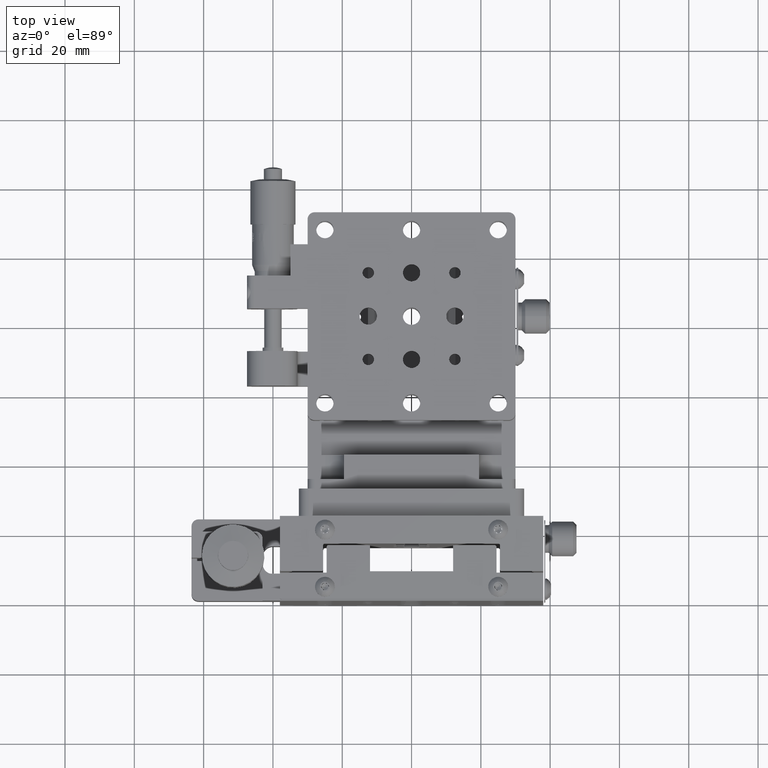
[diagram: clean part render]
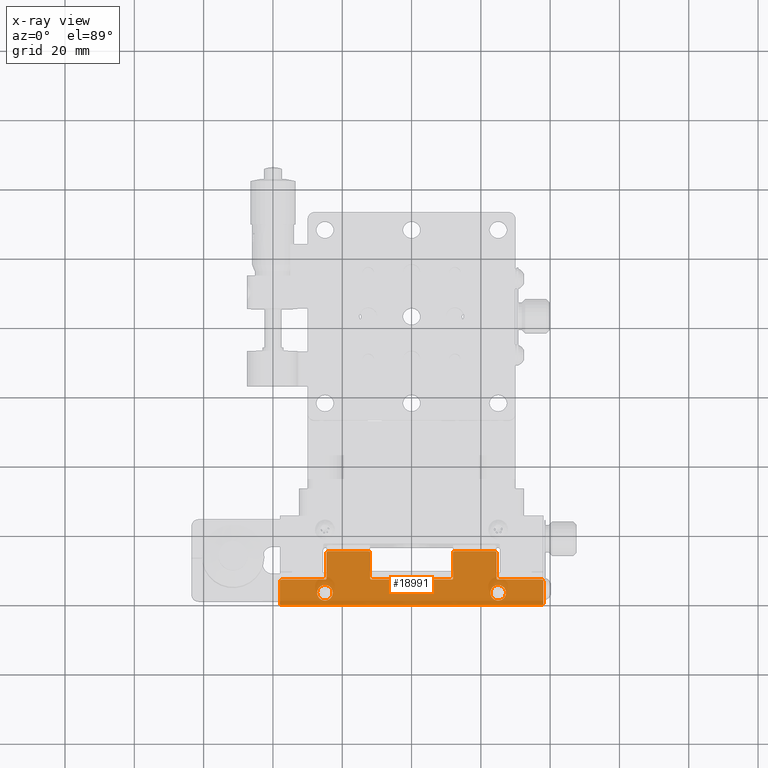
[diagram: x-ray — body ghosted, one internal face saturated and labeled with its STEP entity id]
A machine part, top view, then the same camera in x-ray: the body is ghosted and one INTERNAL B-rep face — a face not visible from any outside direction — is saturated and labeled: STEP entity #18991.
In plain terms, the highlighted planar face has unit normal (0, 0, 1).
Its self-contained STEP definition (entity closure, byte-faithful):
#149 = CARTESIAN_POINT ( 'NONE',  ( 22.74999999999999300, 3.600000000000014300, -38.00000000000000000 ) ) ;
#506 = EDGE_LOOP ( 'NONE', ( #60732, #57470 ) ) ;
#516 = DIRECTION ( 'NONE',  ( 1.000000000000000000, 0.0000000000000000000, 0.0000000000000000000 ) ) ;
#1121 = AXIS2_PLACEMENT_3D ( 'NONE', #23950, #59273, #29043 ) ;
#1295 = CIRCLE ( 'NONE', #40115, 0.5000000000000004400 ) ;
#1443 = LINE ( 'NONE', #46578, #6229 ) ;
#1451 = VECTOR ( 'NONE', #5597, 1000.000000000000000 ) ;
#1595 = ORIENTED_EDGE ( 'NONE', *, *, #2950, .T. ) ;
#1667 = CARTESIAN_POINT ( 'NONE',  ( 24.49999999999999300, 15.60000000000000900, -38.00000000000000000 ) ) ;
#1744 = EDGE_CURVE ( 'NONE', #2550, #8626, #64989, .T. ) ;
#1920 = ORIENTED_EDGE ( 'NONE', *, *, #10735, .T. ) ;
#2550 = VERTEX_POINT ( 'NONE', #3742 ) ;
#2666 = CARTESIAN_POINT ( 'NONE',  ( -38.00000000000001400, 0.5000000000000143200, -38.00000000000000000 ) ) ;
#2950 = EDGE_CURVE ( 'NONE', #30799, #49186, #20422, .T. ) ;
#3049 = CARTESIAN_POINT ( 'NONE',  ( 11.49999999999999300, 7.400000000000014600, -38.00000000000000000 ) ) ;
#3742 = CARTESIAN_POINT ( 'NONE',  ( 37.50000000000000000, 1.384109958103877700E-014, -38.00000000000000000 ) ) ;
#3840 = CIRCLE ( 'NONE', #52581, 2.250000000000001800 ) ;
#4179 = CARTESIAN_POINT ( 'NONE',  ( -11.50000000000000700, 7.400000000000014600, -38.00000000000000000 ) ) ;
#4452 = AXIS2_PLACEMENT_3D ( 'NONE', #34833, #4500, #39907 ) ;
#4500 = DIRECTION ( 'NONE',  ( 0.0000000000000000000, 0.0000000000000000000, 1.000000000000000000 ) ) ;
#4635 = AXIS2_PLACEMENT_3D ( 'NONE', #47139, #16849, #52201 ) ;
#4785 = ORIENTED_EDGE ( 'NONE', *, *, #60062, .T. ) ;
#5341 = CARTESIAN_POINT ( 'NONE',  ( -12.00000000000000900, 15.60000000000000900, -38.00000000000000000 ) ) ;
#5597 = DIRECTION ( 'NONE',  ( 0.0000000000000000000, -1.000000000000000000, 0.0000000000000000000 ) ) ;
#5859 = VECTOR ( 'NONE', #42364, 1000.000000000000000 ) ;
#6229 = VECTOR ( 'NONE', #16283, 1000.000000000000000 ) ;
#6346 = CARTESIAN_POINT ( 'NONE',  ( -37.50000000000001400, 1.384109958103877700E-014, -38.00000000000000000 ) ) ;
#6425 = CARTESIAN_POINT ( 'NONE',  ( 24.49999999999999300, 15.10000000000000700, -38.00000000000000000 ) ) ;
#6884 = EDGE_CURVE ( 'NONE', #12789, #26287, #28620, .T. ) ;
#7518 = VERTEX_POINT ( 'NONE', #41358 ) ;
#7680 = LINE ( 'NONE', #5341, #59908 ) ;
#7802 = FACE_OUTER_BOUND ( 'NONE', #46154, .T. ) ;
#7821 = LINE ( 'NONE', #63490, #19687 ) ;
#7912 = VERTEX_POINT ( 'NONE', #34703 ) ;
#8116 = LINE ( 'NONE', #41473, #45294 ) ;
#8189 = DIRECTION ( 'NONE',  ( -0.0000000000000000000, -0.0000000000000000000, -1.000000000000000000 ) ) ;
#8626 = VERTEX_POINT ( 'NONE', #55349 ) ;
#8885 = DIRECTION ( 'NONE',  ( 0.0000000000000000000, 0.0000000000000000000, 1.000000000000000000 ) ) ;
#9138 = AXIS2_PLACEMENT_3D ( 'NONE', #24068, #59392, #29159 ) ;
#9391 = FACE_BOUND ( 'NONE', #17224, .T. ) ;
#9429 = VERTEX_POINT ( 'NONE', #22765 ) ;
#9635 = ORIENTED_EDGE ( 'NONE', *, *, #35093, .T. ) ;
#9657 = CARTESIAN_POINT ( 'NONE',  ( -12.50000000000000900, 15.10000000000000700, -38.00000000000000000 ) ) ;
#10262 = DIRECTION ( 'NONE',  ( 0.0000000000000000000, 0.0000000000000000000, 1.000000000000000000 ) ) ;
#10537 = CARTESIAN_POINT ( 'NONE',  ( -37.50000000000001400, 7.400000000000014600, -38.00000000000000000 ) ) ;
#10735 = EDGE_CURVE ( 'NONE', #49186, #36899, #32332, .T. ) ;
#10839 = CARTESIAN_POINT ( 'NONE',  ( -25.00000000000000700, 3.600000000000013900, -38.00000000000000000 ) ) ;
#11503 = ORIENTED_EDGE ( 'NONE', *, *, #27313, .T. ) ;
#12314 = CARTESIAN_POINT ( 'NONE',  ( 27.24999999999999600, 3.600000000000013900, -38.00000000000000000 ) ) ;
#12789 = VERTEX_POINT ( 'NONE', #2666 ) ;
#13552 = EDGE_CURVE ( 'NONE', #26287, #2550, #1443, .T. ) ;
#13814 = ORIENTED_EDGE ( 'NONE', *, *, #24927, .T. ) ;
#13860 = LINE ( 'NONE', #46907, #51053 ) ;
#14549 = ORIENTED_EDGE ( 'NONE', *, *, #44493, .T. ) ;
#14705 = DIRECTION ( 'NONE',  ( 1.000000000000000000, 0.0000000000000000000, 0.0000000000000000000 ) ) ;
#15002 = CARTESIAN_POINT ( 'NONE',  ( -11.50000000000000700, 7.900000000000014600, -38.00000000000000000 ) ) ;
#15159 = CARTESIAN_POINT ( 'NONE',  ( -25.00000000000000700, 3.600000000000013900, -38.00000000000000000 ) ) ;
#15392 = CARTESIAN_POINT ( 'NONE',  ( 23.99999999999999300, 15.10000000000000700, -38.00000000000000000 ) ) ;
#15920 = DIRECTION ( 'NONE',  ( 1.000000000000000000, 0.0000000000000000000, 0.0000000000000000000 ) ) ;
#16283 = DIRECTION ( 'NONE',  ( 1.000000000000000000, 0.0000000000000000000, 0.0000000000000000000 ) ) ;
#16849 = DIRECTION ( 'NONE',  ( -0.0000000000000000000, -0.0000000000000000000, -1.000000000000000000 ) ) ;
#17122 = CARTESIAN_POINT ( 'NONE',  ( -12.00000000000000700, 7.900000000000014600, -38.00000000000000000 ) ) ;
#17224 = EDGE_LOOP ( 'NONE', ( #37675, #22260 ) ) ;
#17860 = VERTEX_POINT ( 'NONE', #37199 ) ;
#18265 = VECTOR ( 'NONE', #56843, 1000.000000000000000 ) ;
#18991 = ADVANCED_FACE ( 'NONE', ( #9391, #7802, #21249 ), #59796, .T. ) ;
#19687 = VECTOR ( 'NONE', #33240, 1000.000000000000000 ) ;
#19935 = EDGE_CURVE ( 'NONE', #32864, #7912, #1295, .T. ) ;
#20097 = DIRECTION ( 'NONE',  ( 1.000000000000000000, 0.0000000000000000000, 0.0000000000000000000 ) ) ;
#20241 = DIRECTION ( 'NONE',  ( 1.000000000000000000, 0.0000000000000000000, 0.0000000000000000000 ) ) ;
#20422 = CIRCLE ( 'NONE', #49907, 0.5000000000000004400 ) ;
#20503 = DIRECTION ( 'NONE',  ( 1.000000000000000000, 0.0000000000000000000, 0.0000000000000000000 ) ) ;
#20521 = EDGE_CURVE ( 'NONE', #52854, #21552, #61299, .T. ) ;
#21232 = CARTESIAN_POINT ( 'NONE',  ( -25.00000000000000400, 7.400000000000014600, -38.00000000000000000 ) ) ;
#21249 = FACE_BOUND ( 'NONE', #506, .T. ) ;
#21552 = VERTEX_POINT ( 'NONE', #59120 ) ;
#22120 = EDGE_CURVE ( 'NONE', #64115, #17860, #46839, .T. ) ;
#22231 = AXIS2_PLACEMENT_3D ( 'NONE', #61127, #30872, #516 ) ;
#22260 = ORIENTED_EDGE ( 'NONE', *, *, #38354, .F. ) ;
#22765 = CARTESIAN_POINT ( 'NONE',  ( -24.50000000000000700, 15.10000000000000700, -38.00000000000000000 ) ) ;
#23362 = CARTESIAN_POINT ( 'NONE',  ( -37.50000000000001400, 6.900000000000013700, -38.00000000000000000 ) ) ;
#23529 = EDGE_CURVE ( 'NONE', #7912, #12789, #55261, .T. ) ;
#23574 = AXIS2_PLACEMENT_3D ( 'NONE', #25573, #60902, #30644 ) ;
#23738 = CARTESIAN_POINT ( 'NONE',  ( -27.25000000000001100, 3.600000000000014300, -38.00000000000000000 ) ) ;
#23950 = CARTESIAN_POINT ( 'NONE',  ( 12.49999999999999500, 15.10000000000000700, -38.00000000000000000 ) ) ;
#23981 = VERTEX_POINT ( 'NONE', #61460 ) ;
#24068 = CARTESIAN_POINT ( 'NONE',  ( 37.50000000000000000, 0.5000000000000138800, -38.00000000000000000 ) ) ;
#24508 = CARTESIAN_POINT ( 'NONE',  ( 37.50000000000000000, 6.900000000000013700, -38.00000000000000000 ) ) ;
#24528 = DIRECTION ( 'NONE',  ( 0.0000000000000000000, 0.0000000000000000000, 1.000000000000000000 ) ) ;
#24901 = VERTEX_POINT ( 'NONE', #61848 ) ;
#24927 = EDGE_CURVE ( 'NONE', #42626, #52854, #46235, .T. ) ;
#25018 = EDGE_CURVE ( 'NONE', #8626, #51753, #33562, .T. ) ;
#25118 = CARTESIAN_POINT ( 'NONE',  ( -12.00000000000000700, 7.400000000000014600, -38.00000000000000000 ) ) ;
#25145 = ORIENTED_EDGE ( 'NONE', *, *, #28998, .T. ) ;
#25323 = EDGE_CURVE ( 'NONE', #23981, #59138, #37460, .T. ) ;
#25449 = DIRECTION ( 'NONE',  ( -1.000000000000000000, -0.0000000000000000000, -0.0000000000000000000 ) ) ;
#25573 = CARTESIAN_POINT ( 'NONE',  ( -25.00000000000000400, 7.900000000000014600, -38.00000000000000000 ) ) ;
#26031 = AXIS2_PLACEMENT_3D ( 'NONE', #24508, #59834, #29586 ) ;
#26287 = VERTEX_POINT ( 'NONE', #6346 ) ;
#26636 = EDGE_CURVE ( 'NONE', #27033, #63084, #3840, .T. ) ;
#26715 = AXIS2_PLACEMENT_3D ( 'NONE', #40550, #10262, #45628 ) ;
#26914 = AXIS2_PLACEMENT_3D ( 'NONE', #54730, #24528, #59854 ) ;
#27033 = VERTEX_POINT ( 'NONE', #54191 ) ;
#27313 = EDGE_CURVE ( 'NONE', #24901, #41751, #7680, .T. ) ;
#28456 = DIRECTION ( 'NONE',  ( 1.000000000000000000, 0.0000000000000000000, 0.0000000000000000000 ) ) ;
#28620 = CIRCLE ( 'NONE', #22231, 0.5000000000000004400 ) ;
#28711 = ORIENTED_EDGE ( 'NONE', *, *, #6884, .T. ) ;
#28998 = EDGE_CURVE ( 'NONE', #9429, #23981, #7821, .T. ) ;
#29043 = DIRECTION ( 'NONE',  ( 1.000000000000000000, 0.0000000000000000000, 0.0000000000000000000 ) ) ;
#29159 = DIRECTION ( 'NONE',  ( 1.000000000000000000, 0.0000000000000000000, 0.0000000000000000000 ) ) ;
#29586 = DIRECTION ( 'NONE',  ( 1.000000000000000000, 0.0000000000000000000, 0.0000000000000000000 ) ) ;
#30187 = DIRECTION ( 'NONE',  ( -2.115516434118058900E-016, 1.000000000000000000, 0.0000000000000000000 ) ) ;
#30644 = DIRECTION ( 'NONE',  ( 1.000000000000000000, 0.0000000000000000000, 0.0000000000000000000 ) ) ;
#30745 = VECTOR ( 'NONE', #30187, 1000.000000000000000 ) ;
#30799 = VERTEX_POINT ( 'NONE', #4179 ) ;
#30872 = DIRECTION ( 'NONE',  ( 0.0000000000000000000, 0.0000000000000000000, 1.000000000000000000 ) ) ;
#31292 = EDGE_CURVE ( 'NONE', #36899, #24901, #53992, .T. ) ;
#31901 = DIRECTION ( 'NONE',  ( -1.000000000000000000, -0.0000000000000000000, -0.0000000000000000000 ) ) ;
#32332 = LINE ( 'NONE', #25118, #30745 ) ;
#32864 = VERTEX_POINT ( 'NONE', #10537 ) ;
#32884 = ORIENTED_EDGE ( 'NONE', *, *, #1744, .T. ) ;
#33240 = DIRECTION ( 'NONE',  ( 4.231032868236117900E-016, -1.000000000000000000, -0.0000000000000000000 ) ) ;
#33562 = LINE ( 'NONE', #37959, #45399 ) ;
#34703 = CARTESIAN_POINT ( 'NONE',  ( -38.00000000000001400, 6.900000000000013700, -38.00000000000000000 ) ) ;
#34774 = EDGE_CURVE ( 'NONE', #61345, #64115, #13860, .T. ) ;
#34833 = CARTESIAN_POINT ( 'NONE',  ( 38.00000000000000000, 7.400000000000014600, -38.00000000000000000 ) ) ;
#35093 = EDGE_CURVE ( 'NONE', #52176, #30799, #41482, .T. ) ;
#35150 = VERTEX_POINT ( 'NONE', #149 ) ;
#35930 = CARTESIAN_POINT ( 'NONE',  ( -38.00000000000001400, 7.400000000000014600, -38.00000000000000000 ) ) ;
#36014 = CARTESIAN_POINT ( 'NONE',  ( -24.00000000000000400, 15.60000000000000900, -38.00000000000000000 ) ) ;
#36035 = ORIENTED_EDGE ( 'NONE', *, *, #59618, .T. ) ;
#36360 = ORIENTED_EDGE ( 'NONE', *, *, #23529, .T. ) ;
#36392 = ORIENTED_EDGE ( 'NONE', *, *, #25018, .T. ) ;
#36899 = VERTEX_POINT ( 'NONE', #54653 ) ;
#37018 = ORIENTED_EDGE ( 'NONE', *, *, #47530, .T. ) ;
#37199 = CARTESIAN_POINT ( 'NONE',  ( 24.49999999999998900, 7.900000000000014600, -38.00000000000000000 ) ) ;
#37460 = CIRCLE ( 'NONE', #23574, 0.5000000000000004400 ) ;
#37675 = ORIENTED_EDGE ( 'NONE', *, *, #26636, .F. ) ;
#37959 = CARTESIAN_POINT ( 'NONE',  ( 38.00000000000000000, 1.384109958103877700E-014, -38.00000000000000000 ) ) ;
#38354 = EDGE_CURVE ( 'NONE', #63084, #27033, #54829, .T. ) ;
#38483 = CARTESIAN_POINT ( 'NONE',  ( 11.49999999999999300, 7.900000000000014600, -38.00000000000000000 ) ) ;
#39010 = EDGE_CURVE ( 'NONE', #59138, #32864, #8116, .T. ) ;
#39185 = CARTESIAN_POINT ( 'NONE',  ( 24.99999999999999300, 3.600000000000013900, -38.00000000000000000 ) ) ;
#39582 = AXIS2_PLACEMENT_3D ( 'NONE', #10839, #46220, #15920 ) ;
#39693 = DIRECTION ( 'NONE',  ( -2.115516434118058900E-016, -1.000000000000000000, -0.0000000000000000000 ) ) ;
#39907 = DIRECTION ( 'NONE',  ( 1.000000000000000000, 0.0000000000000000000, -0.0000000000000000000 ) ) ;
#40080 = CIRCLE ( 'NONE', #63267, 0.5000000000000004400 ) ;
#40115 = AXIS2_PLACEMENT_3D ( 'NONE', #23362, #58708, #28456 ) ;
#40550 = CARTESIAN_POINT ( 'NONE',  ( 24.99999999999999300, 3.600000000000013900, -38.00000000000000000 ) ) ;
#40748 = CIRCLE ( 'NONE', #26715, 2.250000000000001800 ) ;
#41358 = CARTESIAN_POINT ( 'NONE',  ( 11.99999999999999300, 7.900000000000014600, -38.00000000000000000 ) ) ;
#41473 = CARTESIAN_POINT ( 'NONE',  ( -38.00000000000001400, 7.400000000000014600, -38.00000000000000000 ) ) ;
#41482 = LINE ( 'NONE', #50590, #54920 ) ;
#41751 = VERTEX_POINT ( 'NONE', #36014 ) ;
#42364 = DIRECTION ( 'NONE',  ( -1.000000000000000000, 0.0000000000000000000, 0.0000000000000000000 ) ) ;
#42626 = VERTEX_POINT ( 'NONE', #61661 ) ;
#43102 = VECTOR ( 'NONE', #39693, 1000.000000000000000 ) ;
#43539 = DIRECTION ( 'NONE',  ( 1.000000000000000000, 0.0000000000000000000, 0.0000000000000000000 ) ) ;
#43761 = EDGE_CURVE ( 'NONE', #17860, #51951, #58628, .T. ) ;
#44236 = DIRECTION ( 'NONE',  ( 1.000000000000000000, 0.0000000000000000000, 0.0000000000000000000 ) ) ;
#44340 = ORIENTED_EDGE ( 'NONE', *, *, #43761, .T. ) ;
#44493 = EDGE_CURVE ( 'NONE', #41751, #9429, #63194, .T. ) ;
#45024 = DIRECTION ( 'NONE',  ( 0.0000000000000000000, 0.0000000000000000000, 1.000000000000000000 ) ) ;
#45294 = VECTOR ( 'NONE', #46573, 1000.000000000000000 ) ;
#45399 = VECTOR ( 'NONE', #48109, 1000.000000000000000 ) ;
#45424 = CARTESIAN_POINT ( 'NONE',  ( 37.50000000000000000, 7.400000000000014600, -38.00000000000000000 ) ) ;
#45628 = DIRECTION ( 'NONE',  ( 1.000000000000000000, 0.0000000000000000000, 0.0000000000000000000 ) ) ;
#45979 = ORIENTED_EDGE ( 'NONE', *, *, #13552, .T. ) ;
#46154 = EDGE_LOOP ( 'NONE', ( #36360, #28711, #45979, #32884, #36392, #37018, #63621, #61924, #44340, #36035, #13814, #60563, #4785, #57657, #9635, #1595, #1920, #47722, #11503, #14549, #25145, #53854, #60974, #63535 ) ) ;
#46220 = DIRECTION ( 'NONE',  ( 0.0000000000000000000, 0.0000000000000000000, 1.000000000000000000 ) ) ;
#46235 = LINE ( 'NONE', #1667, #5859 ) ;
#46573 = DIRECTION ( 'NONE',  ( -1.000000000000000000, -0.0000000000000000000, -0.0000000000000000000 ) ) ;
#46578 = CARTESIAN_POINT ( 'NONE',  ( -38.00000000000001400, 1.384109958103877700E-014, -38.00000000000000000 ) ) ;
#46839 = CIRCLE ( 'NONE', #4635, 0.5000000000000004400 ) ;
#46907 = CARTESIAN_POINT ( 'NONE',  ( 24.49999999999998900, 7.400000000000014600, -38.00000000000000000 ) ) ;
#46911 = CARTESIAN_POINT ( 'NONE',  ( 24.49999999999998900, 7.400000000000014600, -38.00000000000000000 ) ) ;
#47055 = CARTESIAN_POINT ( 'NONE',  ( 24.99999999999998900, 7.400000000000014600, -38.00000000000000000 ) ) ;
#47139 = CARTESIAN_POINT ( 'NONE',  ( 24.99999999999998900, 7.900000000000014600, -38.00000000000000000 ) ) ;
#47530 = EDGE_CURVE ( 'NONE', #51753, #61345, #52528, .T. ) ;
#47564 = CARTESIAN_POINT ( 'NONE',  ( 38.00000000000000000, 6.900000000000013700, -38.00000000000000000 ) ) ;
#47722 = ORIENTED_EDGE ( 'NONE', *, *, #31292, .T. ) ;
#48109 = DIRECTION ( 'NONE',  ( 0.0000000000000000000, 1.000000000000000000, 0.0000000000000000000 ) ) ;
#48663 = VERTEX_POINT ( 'NONE', #12314 ) ;
#49186 = VERTEX_POINT ( 'NONE', #17122 ) ;
#49907 = AXIS2_PLACEMENT_3D ( 'NONE', #15002, #50365, #20097 ) ;
#50365 = DIRECTION ( 'NONE',  ( -0.0000000000000000000, -0.0000000000000000000, -1.000000000000000000 ) ) ;
#50517 = DIRECTION ( 'NONE',  ( 0.0000000000000000000, 0.0000000000000000000, 1.000000000000000000 ) ) ;
#50590 = CARTESIAN_POINT ( 'NONE',  ( -12.00000000000000700, 7.400000000000014600, -38.00000000000000000 ) ) ;
#50779 = DIRECTION ( 'NONE',  ( 0.0000000000000000000, 0.0000000000000000000, 1.000000000000000000 ) ) ;
#50879 = DIRECTION ( 'NONE',  ( -1.000000000000000000, 0.0000000000000000000, 0.0000000000000000000 ) ) ;
#51053 = VECTOR ( 'NONE', #31901, 1000.000000000000000 ) ;
#51310 = CIRCLE ( 'NONE', #65315, 0.5000000000000004400 ) ;
#51753 = VERTEX_POINT ( 'NONE', #47564 ) ;
#51951 = VERTEX_POINT ( 'NONE', #6425 ) ;
#52142 = EDGE_CURVE ( 'NONE', #7518, #52176, #51310, .T. ) ;
#52176 = VERTEX_POINT ( 'NONE', #3049 ) ;
#52201 = DIRECTION ( 'NONE',  ( 1.000000000000000000, 0.0000000000000000000, 0.0000000000000000000 ) ) ;
#52528 = CIRCLE ( 'NONE', #26031, 0.5000000000000004400 ) ;
#52581 = AXIS2_PLACEMENT_3D ( 'NONE', #15159, #50517, #20241 ) ;
#52854 = VERTEX_POINT ( 'NONE', #65333 ) ;
#53854 = ORIENTED_EDGE ( 'NONE', *, *, #25323, .T. ) ;
#53992 = CIRCLE ( 'NONE', #62686, 0.5000000000000004400 ) ;
#54191 = CARTESIAN_POINT ( 'NONE',  ( -22.75000000000000700, 3.600000000000013900, -38.00000000000000000 ) ) ;
#54653 = CARTESIAN_POINT ( 'NONE',  ( -12.00000000000000900, 15.10000000000000700, -38.00000000000000000 ) ) ;
#54671 = CARTESIAN_POINT ( 'NONE',  ( 11.99999999999999300, 7.400000000000014600, -38.00000000000000000 ) ) ;
#54730 = CARTESIAN_POINT ( 'NONE',  ( -24.00000000000000700, 15.10000000000000700, -38.00000000000000000 ) ) ;
#54829 = CIRCLE ( 'NONE', #39582, 2.250000000000001800 ) ;
#54920 = VECTOR ( 'NONE', #25449, 1000.000000000000000 ) ;
#55261 = LINE ( 'NONE', #35930, #1451 ) ;
#55349 = CARTESIAN_POINT ( 'NONE',  ( 38.00000000000000000, 0.5000000000000138800, -38.00000000000000000 ) ) ;
#56553 = LINE ( 'NONE', #54671, #43102 ) ;
#56843 = DIRECTION ( 'NONE',  ( 4.231032868236117900E-016, 1.000000000000000000, 0.0000000000000000000 ) ) ;
#57470 = ORIENTED_EDGE ( 'NONE', *, *, #62924, .F. ) ;
#57657 = ORIENTED_EDGE ( 'NONE', *, *, #52142, .T. ) ;
#58151 = AXIS2_PLACEMENT_3D ( 'NONE', #39185, #8885, #44236 ) ;
#58628 = LINE ( 'NONE', #46911, #18265 ) ;
#58708 = DIRECTION ( 'NONE',  ( 0.0000000000000000000, 0.0000000000000000000, 1.000000000000000000 ) ) ;
#58919 = EDGE_CURVE ( 'NONE', #48663, #35150, #62372, .T. ) ;
#59120 = CARTESIAN_POINT ( 'NONE',  ( 11.99999999999999500, 15.10000000000000700, -38.00000000000000000 ) ) ;
#59138 = VERTEX_POINT ( 'NONE', #21232 ) ;
#59273 = DIRECTION ( 'NONE',  ( 0.0000000000000000000, 0.0000000000000000000, 1.000000000000000000 ) ) ;
#59392 = DIRECTION ( 'NONE',  ( 0.0000000000000000000, 0.0000000000000000000, 1.000000000000000000 ) ) ;
#59618 = EDGE_CURVE ( 'NONE', #51951, #42626, #40080, .T. ) ;
#59796 = PLANE ( 'NONE',  #4452 ) ;
#59834 = DIRECTION ( 'NONE',  ( 0.0000000000000000000, 0.0000000000000000000, 1.000000000000000000 ) ) ;
#59854 = DIRECTION ( 'NONE',  ( 1.000000000000000000, 0.0000000000000000000, 0.0000000000000000000 ) ) ;
#59908 = VECTOR ( 'NONE', #50879, 1000.000000000000000 ) ;
#60062 = EDGE_CURVE ( 'NONE', #21552, #7518, #56553, .T. ) ;
#60563 = ORIENTED_EDGE ( 'NONE', *, *, #20521, .T. ) ;
#60732 = ORIENTED_EDGE ( 'NONE', *, *, #58919, .F. ) ;
#60902 = DIRECTION ( 'NONE',  ( -0.0000000000000000000, -0.0000000000000000000, -1.000000000000000000 ) ) ;
#60974 = ORIENTED_EDGE ( 'NONE', *, *, #39010, .T. ) ;
#61127 = CARTESIAN_POINT ( 'NONE',  ( -37.50000000000001400, 0.5000000000000138800, -38.00000000000000000 ) ) ;
#61299 = CIRCLE ( 'NONE', #1121, 0.5000000000000004400 ) ;
#61345 = VERTEX_POINT ( 'NONE', #45424 ) ;
#61460 = CARTESIAN_POINT ( 'NONE',  ( -24.50000000000000400, 7.900000000000014600, -38.00000000000000000 ) ) ;
#61661 = CARTESIAN_POINT ( 'NONE',  ( 23.99999999999999300, 15.60000000000000900, -38.00000000000000000 ) ) ;
#61848 = CARTESIAN_POINT ( 'NONE',  ( -12.50000000000000900, 15.60000000000000900, -38.00000000000000000 ) ) ;
#61924 = ORIENTED_EDGE ( 'NONE', *, *, #22120, .T. ) ;
#62372 = CIRCLE ( 'NONE', #58151, 2.250000000000001800 ) ;
#62686 = AXIS2_PLACEMENT_3D ( 'NONE', #9657, #45024, #14705 ) ;
#62924 = EDGE_CURVE ( 'NONE', #35150, #48663, #40748, .T. ) ;
#63084 = VERTEX_POINT ( 'NONE', #23738 ) ;
#63194 = CIRCLE ( 'NONE', #26914, 0.5000000000000004400 ) ;
#63267 = AXIS2_PLACEMENT_3D ( 'NONE', #15392, #50779, #20503 ) ;
#63490 = CARTESIAN_POINT ( 'NONE',  ( -24.50000000000000400, 7.400000000000014600, -38.00000000000000000 ) ) ;
#63535 = ORIENTED_EDGE ( 'NONE', *, *, #19935, .T. ) ;
#63621 = ORIENTED_EDGE ( 'NONE', *, *, #34774, .T. ) ;
#64115 = VERTEX_POINT ( 'NONE', #47055 ) ;
#64989 = CIRCLE ( 'NONE', #9138, 0.5000000000000004400 ) ;
#65315 = AXIS2_PLACEMENT_3D ( 'NONE', #38483, #8189, #43539 ) ;
#65333 = CARTESIAN_POINT ( 'NONE',  ( 12.49999999999999800, 15.60000000000000900, -38.00000000000000000 ) ) ;